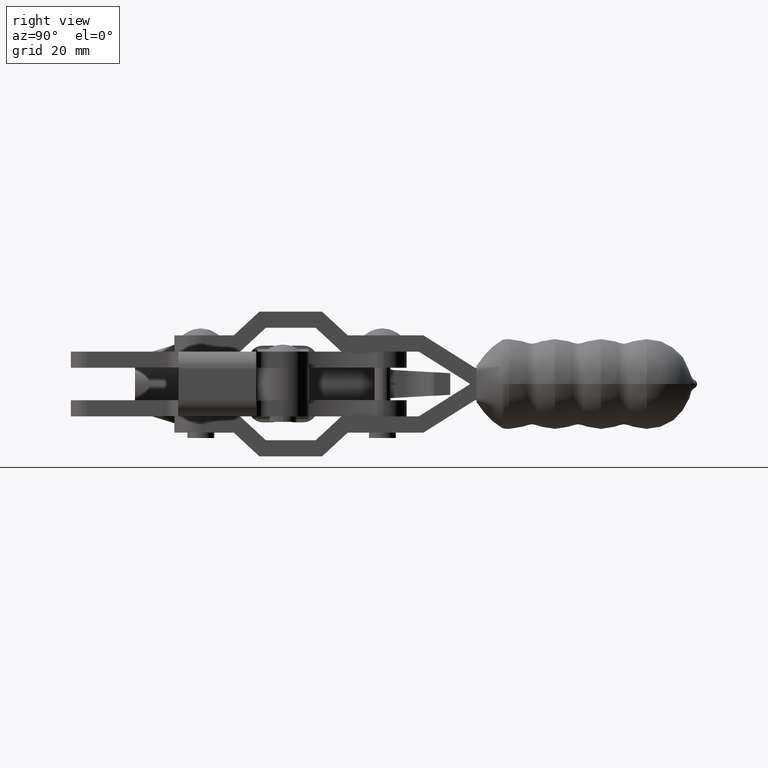
[diagram: clean part render]
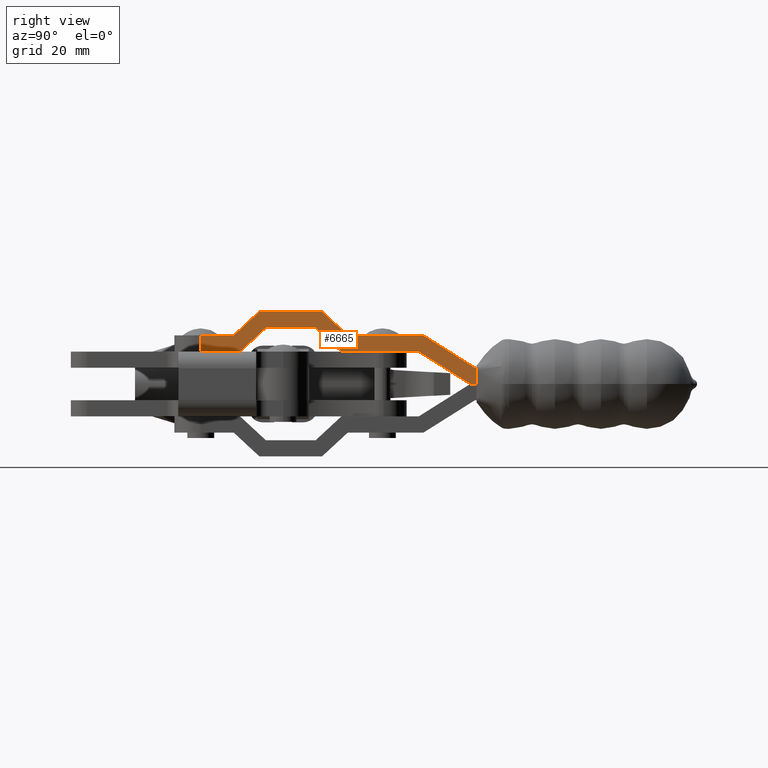
[diagram: same view with one face highlighted and labeled with its STEP entity id]
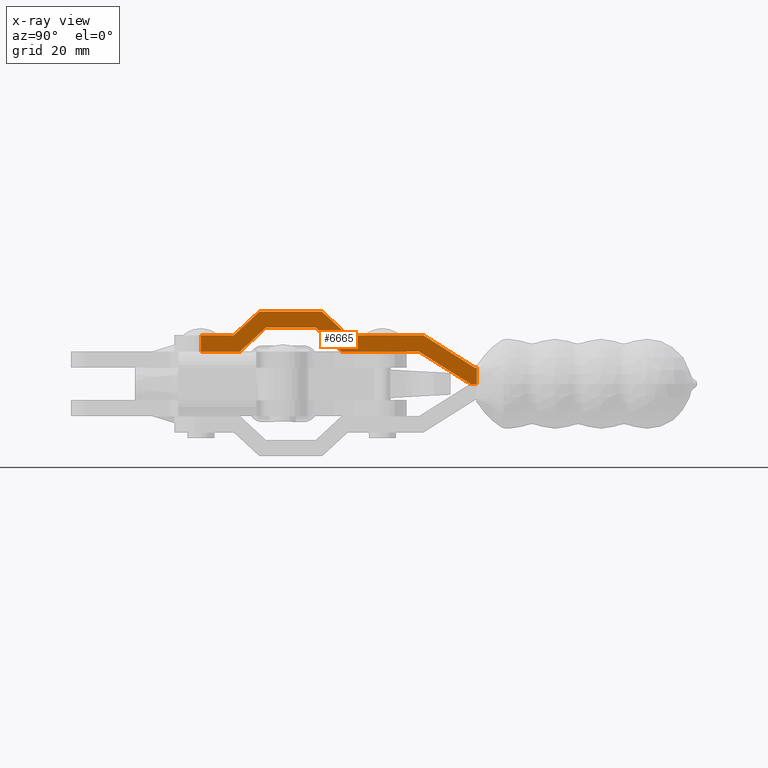
[diagram: x-ray of the same camera — body ghosted, the highlighted face saturated]
A machine part, right view. The second image highlights one B-rep face of the part: STEP entity #6665.
The next image is the same camera in x-ray: the body ghosted, the highlighted face saturated — about 0% of this face is hidden behind the body in this view.
In plain terms, the highlighted planar face has unit normal (1, -0, 0).
Its self-contained STEP definition (entity closure, byte-faithful):
#16 = VECTOR ( 'NONE', #12452, 1000.000000000000000 ) ;
#54 = EDGE_CURVE ( 'NONE', #9576, #10773, #8860, .T. ) ;
#59 = VECTOR ( 'NONE', #3500, 1000.000000000000200 ) ;
#222 = DIRECTION ( 'NONE',  ( 2.057404102668582500E-016, 0.7336180748552528800, 0.6795620061816820500 ) ) ;
#498 = CARTESIAN_POINT ( 'NONE',  ( -15.66037234350255100, 53.41344415514660700, 8.999999999999570100 ) ) ;
#544 = VECTOR ( 'NONE', #5179, 1000.000000000000000 ) ;
#787 = ORIENTED_EDGE ( 'NONE', *, *, #12005, .F. ) ;
#878 = ORIENTED_EDGE ( 'NONE', *, *, #8852, .F. ) ;
#941 = EDGE_CURVE ( 'NONE', #8993, #4690, #1145, .T. ) ;
#946 = CARTESIAN_POINT ( 'NONE',  ( -15.66037234350255500, 62.95344415514669800, 2.999999999999595900 ) ) ;
#1145 = LINE ( 'NONE', #11601, #8669 ) ;
#1247 = CARTESIAN_POINT ( 'NONE',  ( -15.66037234350254400, 39.41344415514660700, 8.999999999999575500 ) ) ;
#1386 = EDGE_CURVE ( 'NONE', #3979, #5256, #3310, .T. ) ;
#1421 = ORIENTED_EDGE ( 'NONE', *, *, #9312, .F. ) ;
#1581 = EDGE_CURVE ( 'NONE', #12206, #9576, #3462, .T. ) ;
#1582 = PLANE ( 'NONE',  #2260 ) ;
#1727 = LINE ( 'NONE', #11515, #9222 ) ;
#1747 = ORIENTED_EDGE ( 'NONE', *, *, #12273, .T. ) ;
#1754 = CARTESIAN_POINT ( 'NONE',  ( -15.66037234350254100, 23.08344415514656900, 13.39999999999974100 ) ) ;
#1826 = EDGE_CURVE ( 'NONE', #5256, #3981, #7299, .T. ) ;
#2244 = DIRECTION ( 'NONE',  ( -2.172256718757331400E-016, -0.8464994518356165900, 0.5323895923494377200 ) ) ;
#2249 = CARTESIAN_POINT ( 'NONE',  ( -15.66037234350254400, 34.66344415514645000, 13.39999999999974500 ) ) ;
#2260 = AXIS2_PLACEMENT_3D ( 'NONE', #3779, #2746, #2963 ) ;
#2460 = CARTESIAN_POINT ( 'NONE',  ( -15.66037234350255500, 62.95344415514669800, 2.999999999999595900 ) ) ;
#2624 = CARTESIAN_POINT ( 'NONE',  ( -15.66037234350255500, 12.23344415514646100, 5.999999999999981300 ) ) ;
#2746 = DIRECTION ( 'NONE',  ( 1.000000000000000000, -3.053113317719180500E-016, 5.438327557345155200E-018 ) ) ;
#2850 = LINE ( 'NONE', #9864, #10599 ) ;
#2963 = DIRECTION ( 'NONE',  ( -3.053113317719180500E-016, -1.000000000000000000, -4.520581697505897200E-016 ) ) ;
#3019 = CARTESIAN_POINT ( 'NONE',  ( -15.66037234350254800, 38.23747232599036000, 5.999999999999991100 ) ) ;
#3123 = DIRECTION ( 'NONE',  ( 3.053113317719181000E-016, 1.000000000000000000, 3.022547607715910800E-016 ) ) ;
#3131 = LINE ( 'NONE', #8236, #8552 ) ;
#3310 = LINE ( 'NONE', #11173, #544 ) ;
#3390 = CARTESIAN_POINT ( 'NONE',  ( -15.66037234350254400, 39.41344415514660700, 8.999999999999575500 ) ) ;
#3462 = LINE ( 'NONE', #5829, #8867 ) ;
#3476 = DIRECTION ( 'NONE',  ( 2.498001805406602200E-016, 1.000000000000000000, 4.520581697505894200E-016 ) ) ;
#3500 = DIRECTION ( 'NONE',  ( 2.172256718757331700E-016, 0.8464994518356167000, -0.5323895923494376100 ) ) ;
#3635 = CARTESIAN_POINT ( 'NONE',  ( -15.66037234350255900, 52.54847299284177400, 5.999999999999997300 ) ) ;
#3717 = DIRECTION ( 'NONE',  ( 5.438327557345275400E-018, 2.756413270104163300E-017, -1.000000000000000000 ) ) ;
#3779 = CARTESIAN_POINT ( 'NONE',  ( -15.66037234350255100, 32.87017886447979700, 18.37628561532181200 ) ) ;
#3902 = ORIENTED_EDGE ( 'NONE', *, *, #11714, .F. ) ;
#3979 = VERTEX_POINT ( 'NONE', #10422 ) ;
#3981 = VERTEX_POINT ( 'NONE', #7555 ) ;
#4360 = EDGE_CURVE ( 'NONE', #12206, #6031, #5513, .T. ) ;
#4361 = VECTOR ( 'NONE', #10458, 1000.000000000000000 ) ;
#4395 = CARTESIAN_POINT ( 'NONE',  ( -15.66037234350255900, 24.25941598430232600, 10.39999999999975000 ) ) ;
#4478 = CARTESIAN_POINT ( 'NONE',  ( -15.66037234350254100, 63.25344415514681600, 2.999999999999594100 ) ) ;
#4593 = VECTOR ( 'NONE', #222, 1000.000000000000100 ) ;
#4690 = VERTEX_POINT ( 'NONE', #498 ) ;
#4841 = EDGE_LOOP ( 'NONE', ( #8451, #10601, #5821, #3902, #6117, #8273, #787, #5950, #12660, #1747, #6879, #11154, #1421, #7332, #878, #5533 ) ) ;
#4869 = LINE ( 'NONE', #13147, #9603 ) ;
#5023 = EDGE_CURVE ( 'NONE', #6257, #10516, #12419, .T. ) ;
#5179 = DIRECTION ( 'NONE',  ( 3.053113317719181000E-016, 1.000000000000000000, 2.943560355708803800E-016 ) ) ;
#5256 = VERTEX_POINT ( 'NONE', #11428 ) ;
#5381 = CARTESIAN_POINT ( 'NONE',  ( -15.66037234350254100, 62.08847299284175100, 9.535788020108626200E-014 ) ) ;
#5513 = LINE ( 'NONE', #8258, #16 ) ;
#5533 = ORIENTED_EDGE ( 'NONE', *, *, #54, .F. ) ;
#5559 = LINE ( 'NONE', #2460, #59 ) ;
#5609 = VERTEX_POINT ( 'NONE', #2249 ) ;
#5716 = EDGE_CURVE ( 'NONE', #7647, #7865, #11486, .T. ) ;
#5821 = ORIENTED_EDGE ( 'NONE', *, *, #10717, .F. ) ;
#5829 = CARTESIAN_POINT ( 'NONE',  ( -15.66037234350254400, 62.08847299284169500, 1.123165716293499400E-013 ) ) ;
#5950 = ORIENTED_EDGE ( 'NONE', *, *, #1826, .F. ) ;
#6031 = VERTEX_POINT ( 'NONE', #4478 ) ;
#6079 = FACE_OUTER_BOUND ( 'NONE', #4841, .T. ) ;
#6117 = ORIENTED_EDGE ( 'NONE', *, *, #941, .F. ) ;
#6177 = VECTOR ( 'NONE', #2244, 1000.000000000000300 ) ;
#6236 = DIRECTION ( 'NONE',  ( -2.057404102668579500E-016, -0.7336180748552519900, -0.6795620061816830500 ) ) ;
#6257 = VERTEX_POINT ( 'NONE', #4395 ) ;
#6467 = DIRECTION ( 'NONE',  ( -1.312011101626375400E-016, -0.7336180748552372200, 0.6795620061816991500 ) ) ;
#6665 = ADVANCED_FACE ( 'NONE', ( #6079 ), #1582, .T. ) ;
#6724 = CARTESIAN_POINT ( 'NONE',  ( -15.66037234350254400, 63.25344415514674500, 1.128740185344643800E-013 ) ) ;
#6783 = LINE ( 'NONE', #3390, #4361 ) ;
#6830 = LINE ( 'NONE', #10790, #8543 ) ;
#6879 = ORIENTED_EDGE ( 'NONE', *, *, #10109, .F. ) ;
#7299 = LINE ( 'NONE', #1754, #4593 ) ;
#7332 = ORIENTED_EDGE ( 'NONE', *, *, #5716, .F. ) ;
#7555 = CARTESIAN_POINT ( 'NONE',  ( -15.66037234350254100, 23.08344415514656900, 13.39999999999974100 ) ) ;
#7647 = VERTEX_POINT ( 'NONE', #3019 ) ;
#7825 = CARTESIAN_POINT ( 'NONE',  ( -15.66037234350254400, 33.48747232599064500, 10.39999999999974300 ) ) ;
#7865 = VERTEX_POINT ( 'NONE', #7825 ) ;
#8236 = CARTESIAN_POINT ( 'NONE',  ( -15.66037234350254400, 34.66344415514645000, 13.39999999999974500 ) ) ;
#8258 = CARTESIAN_POINT ( 'NONE',  ( -15.66037234350253700, 63.25344415514674500, 2.499999999999606500 ) ) ;
#8273 = ORIENTED_EDGE ( 'NONE', *, *, #9006, .F. ) ;
#8451 = ORIENTED_EDGE ( 'NONE', *, *, #1581, .F. ) ;
#8479 = VECTOR ( 'NONE', #8983, 1000.000000000000000 ) ;
#8543 = VECTOR ( 'NONE', #3717, 1000.000000000000000 ) ;
#8552 = VECTOR ( 'NONE', #3123, 1000.000000000000000 ) ;
#8669 = VECTOR ( 'NONE', #3476, 1000.000000000000000 ) ;
#8690 = CARTESIAN_POINT ( 'NONE',  ( -15.66037234350254400, 33.48747232599064500, 10.39999999999974300 ) ) ;
#8785 = VERTEX_POINT ( 'NONE', #946 ) ;
#8798 = LINE ( 'NONE', #13014, #8479 ) ;
#8806 = VECTOR ( 'NONE', #6467, 1000.000000000000100 ) ;
#8852 = EDGE_CURVE ( 'NONE', #10773, #7647, #4869, .T. ) ;
#8860 = LINE ( 'NONE', #3635, #6177 ) ;
#8867 = VECTOR ( 'NONE', #9711, 1000.000000000000000 ) ;
#8983 = DIRECTION ( 'NONE',  ( -3.053113317719181000E-016, -1.000000000000000000, -4.520581697505898200E-016 ) ) ;
#8993 = VERTEX_POINT ( 'NONE', #1247 ) ;
#9006 = EDGE_CURVE ( 'NONE', #5609, #8993, #6783, .T. ) ;
#9222 = VECTOR ( 'NONE', #9476, 1000.000000000000000 ) ;
#9312 = EDGE_CURVE ( 'NONE', #7865, #6257, #8798, .T. ) ;
#9476 = DIRECTION ( 'NONE',  ( -3.053113317719181000E-016, -1.000000000000000000, -4.520581697505898200E-016 ) ) ;
#9576 = VERTEX_POINT ( 'NONE', #5381 ) ;
#9603 = VECTOR ( 'NONE', #10156, 1000.000000000000000 ) ;
#9711 = DIRECTION ( 'NONE',  ( -3.053113317719181000E-016, -1.000000000000000000, -4.785070421927393700E-016 ) ) ;
#9762 = VECTOR ( 'NONE', #6236, 1000.000000000000100 ) ;
#9864 = CARTESIAN_POINT ( 'NONE',  ( -15.66037234350253000, 94.83344415514649500, 2.999999999999604800 ) ) ;
#10109 = EDGE_CURVE ( 'NONE', #10516, #12241, #1727, .T. ) ;
#10156 = DIRECTION ( 'NONE',  ( -3.053113317719181000E-016, -1.000000000000000000, -4.520581697505898200E-016 ) ) ;
#10422 = CARTESIAN_POINT ( 'NONE',  ( -15.66037234350280900, 12.23344415514657200, 8.999999999999978700 ) ) ;
#10458 = DIRECTION ( 'NONE',  ( 7.568995893137958200E-017, 0.7336180748552371100, -0.6795620061816992600 ) ) ;
#10516 = VERTEX_POINT ( 'NONE', #12232 ) ;
#10599 = VECTOR ( 'NONE', #10874, 1000.000000000000000 ) ;
#10601 = ORIENTED_EDGE ( 'NONE', *, *, #4360, .T. ) ;
#10717 = EDGE_CURVE ( 'NONE', #8785, #6031, #2850, .T. ) ;
#10773 = VERTEX_POINT ( 'NONE', #11932 ) ;
#10790 = CARTESIAN_POINT ( 'NONE',  ( -15.66037234350268300, 12.23344415514643300, 13.39999999999976900 ) ) ;
#10794 = CARTESIAN_POINT ( 'NONE',  ( -15.66037234350256200, 19.50941598430240700, 5.999999999999984900 ) ) ;
#10874 = DIRECTION ( 'NONE',  ( 3.053113317719181000E-016, 1.000000000000000000, 3.296263058563667100E-016 ) ) ;
#11154 = ORIENTED_EDGE ( 'NONE', *, *, #5023, .F. ) ;
#11173 = CARTESIAN_POINT ( 'NONE',  ( -15.66037234350255900, 18.33344415514663700, 8.999999999999976900 ) ) ;
#11428 = CARTESIAN_POINT ( 'NONE',  ( -15.66037234350255900, 18.33344415514663700, 8.999999999999976900 ) ) ;
#11486 = LINE ( 'NONE', #8690, #8806 ) ;
#11515 = CARTESIAN_POINT ( 'NONE',  ( -15.66037234350255900, 7.333444155146653800, 5.999999999999973400 ) ) ;
#11601 = CARTESIAN_POINT ( 'NONE',  ( -15.66037234350255100, 53.41344415514660700, 8.999999999999570100 ) ) ;
#11714 = EDGE_CURVE ( 'NONE', #4690, #8785, #5559, .T. ) ;
#11932 = CARTESIAN_POINT ( 'NONE',  ( -15.66037234350255900, 52.54847299284177400, 5.999999999999997300 ) ) ;
#12005 = EDGE_CURVE ( 'NONE', #3981, #5609, #3131, .T. ) ;
#12206 = VERTEX_POINT ( 'NONE', #6724 ) ;
#12232 = CARTESIAN_POINT ( 'NONE',  ( -15.66037234350256200, 19.50941598430240700, 5.999999999999984900 ) ) ;
#12241 = VERTEX_POINT ( 'NONE', #2624 ) ;
#12273 = EDGE_CURVE ( 'NONE', #3979, #12241, #6830, .T. ) ;
#12419 = LINE ( 'NONE', #10794, #9762 ) ;
#12452 = DIRECTION ( 'NONE',  ( -5.438327557345105100E-018, -2.465190328815662400E-032, 1.000000000000000000 ) ) ;
#12660 = ORIENTED_EDGE ( 'NONE', *, *, #1386, .F. ) ;
#13014 = CARTESIAN_POINT ( 'NONE',  ( -15.66037234350255900, 24.25941598430232600, 10.39999999999975000 ) ) ;
#13147 = CARTESIAN_POINT ( 'NONE',  ( -15.66037234350254800, 38.23747232599036000, 5.999999999999991100 ) ) ;